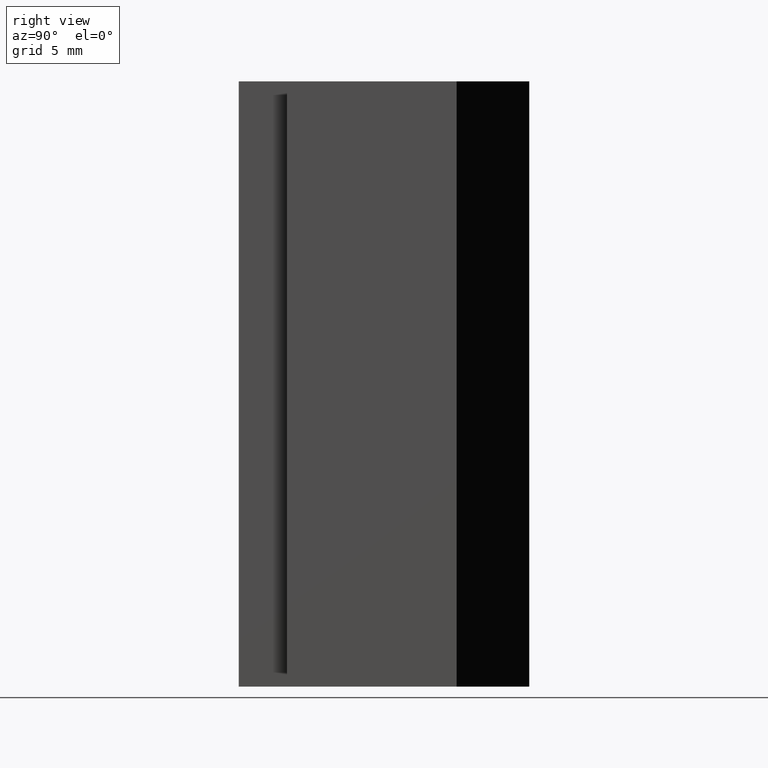
[diagram: clean part render]
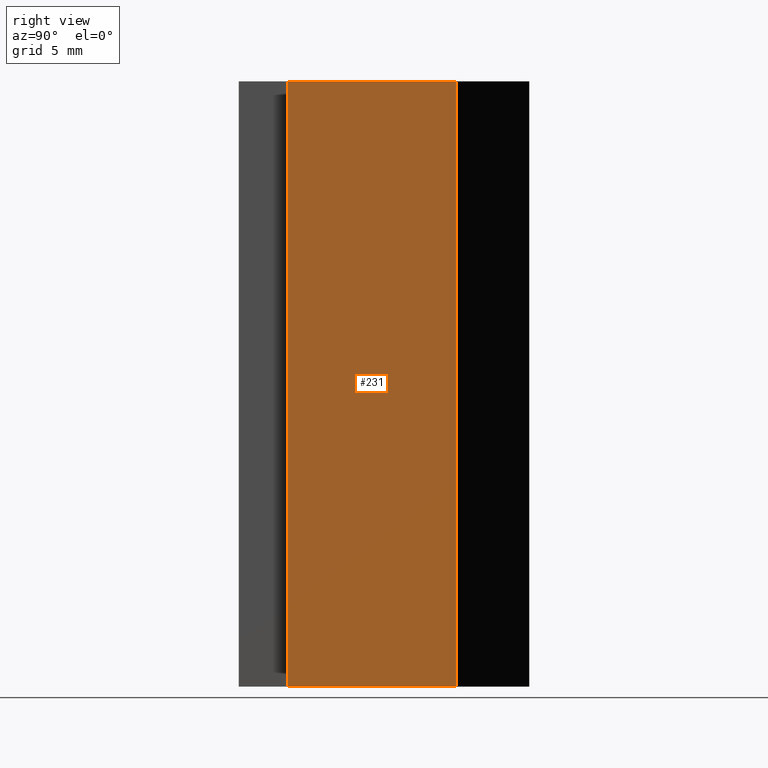
[diagram: same view with one face highlighted and labeled with its STEP entity id]
A machine part, right view. The second image highlights one B-rep face of the part: STEP entity #231.
In plain terms, the highlighted planar face has unit normal (1, 0, 0).
Its self-contained STEP definition (entity closure, byte-faithful):
#25=FACE_OUTER_BOUND('',#37,.T.);
#37=EDGE_LOOP('',(#192,#193,#194,#195));
#40=LINE('',#329,#70);
#66=LINE('',#380,#96);
#67=LINE('',#383,#97);
#68=LINE('',#384,#98);
#70=VECTOR('',#273,10.);
#96=VECTOR('',#315,10.);
#97=VECTOR('',#318,10.);
#98=VECTOR('',#319,10.);
#100=VERTEX_POINT('',#327);
#101=VERTEX_POINT('',#328);
#118=VERTEX_POINT('',#378);
#119=VERTEX_POINT('',#382);
#120=EDGE_CURVE('',#100,#101,#40,.T.);
#146=EDGE_CURVE('',#118,#101,#66,.T.);
#147=EDGE_CURVE('',#118,#119,#67,.T.);
#148=EDGE_CURVE('',#100,#119,#68,.T.);
#192=ORIENTED_EDGE('',*,*,#147,.T.);
#193=ORIENTED_EDGE('',*,*,#148,.F.);
#194=ORIENTED_EDGE('',*,*,#120,.T.);
#195=ORIENTED_EDGE('',*,*,#146,.F.);
#219=PLANE('',#266);
#231=ADVANCED_FACE('',(#25),#219,.T.);
#266=AXIS2_PLACEMENT_3D('',#381,#316,#317);
#273=DIRECTION('',(0.,1.,0.));
#315=DIRECTION('',(0.,0.,-1.));
#316=DIRECTION('center_axis',(1.,0.,0.));
#317=DIRECTION('ref_axis',(0.,0.,-1.));
#318=DIRECTION('',(0.,-1.,0.));
#319=DIRECTION('',(0.,0.,1.));
#327=CARTESIAN_POINT('',(6.,-4.,-12.5));
#328=CARTESIAN_POINT('',(6.,3.,-12.5));
#329=CARTESIAN_POINT('',(6.,3.,-12.5));
#378=CARTESIAN_POINT('',(6.,3.,12.5));
#380=CARTESIAN_POINT('',(6.,3.,0.));
#381=CARTESIAN_POINT('Origin',(6.,3.,0.));
#382=CARTESIAN_POINT('',(6.,-4.,12.5));
#383=CARTESIAN_POINT('',(6.,3.,12.5));
#384=CARTESIAN_POINT('',(6.,-4.,0.));